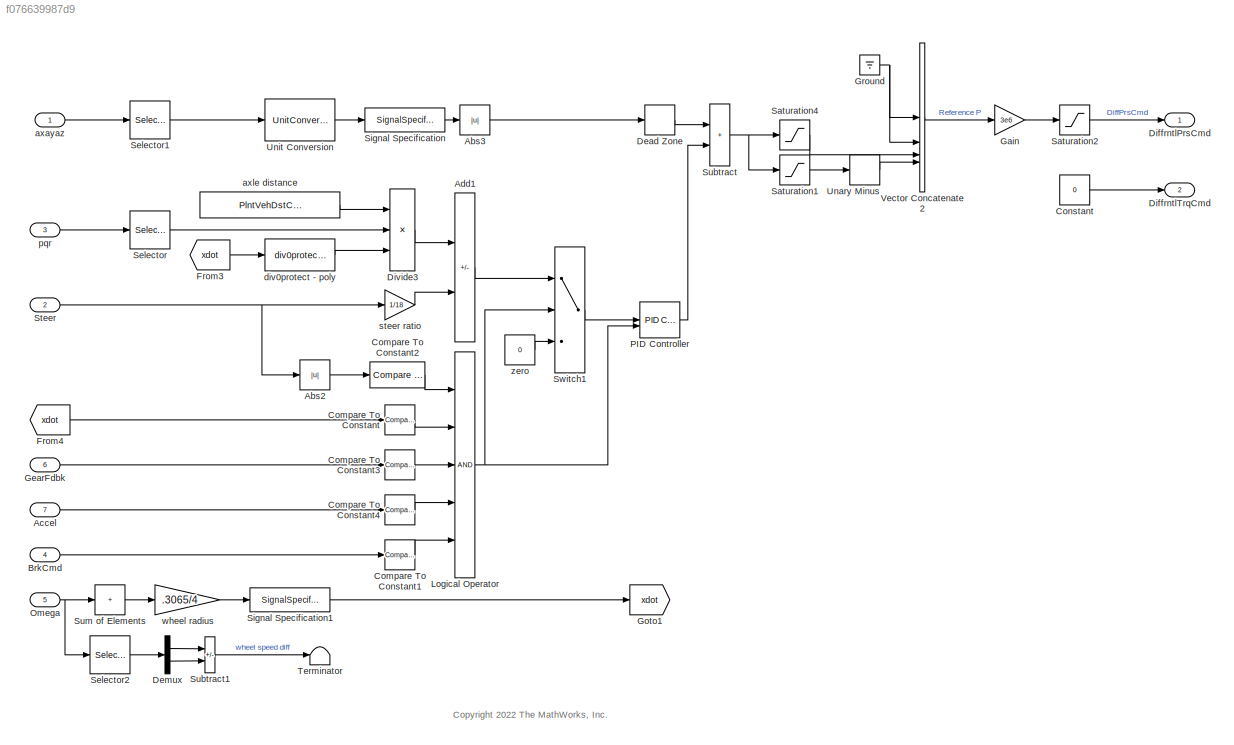
MODEL slx_f076639987d9
KIND model
BLOCK [Abs] Abs2
  SaturateOnIntegerOverflow = off
BLOCK [Abs] Abs3
  SaturateOnIntegerOverflow = off
  ZeroCross = off
BLOCK [Inport] Accel
  OutDataTypeStr = double
  Port = 7
  PortDimensions = 1
BLOCK [Sum] Add1
  IconShape = rectangular
  Inputs = +-
BLOCK [Inport] BrkCmd
  OutDataTypeStr = double
  Port = 4
  PortDimensions = 1
BLOCK [Reference] Compare To Constant  REF=simulink/Logic and Bit
Operations/Compare
To Constant
  SourceBlock = simulink/Logic and Bit\nOperations/Compare\nTo Constant
  SourceType = Compare To Constant
BLOCK [Reference] Compare To Constant1  REF=simulink/Logic and Bit
Operations/Compare
To Constant
  SourceBlock = simulink/Logic and Bit\nOperations/Compare\nTo Constant
  SourceType = Compare To Constant
BLOCK [Reference] Compare To Constant2  REF=simulink/Logic and Bit
Operations/Compare
To Constant
  SourceBlock = simulink/Logic and Bit\nOperations/Compare\nTo Constant
  SourceType = Compare To Constant
BLOCK [Reference] Compare To Constant3  REF=simulink/Logic and Bit
Operations/Compare
To Constant
  SourceBlock = simulink/Logic and Bit\nOperations/Compare\nTo Constant
  SourceType = Compare To Constant
BLOCK [Reference] Compare To Constant4  REF=simulink/Logic and Bit
Operations/Compare
To Constant
  SourceBlock = simulink/Logic and Bit\nOperations/Compare\nTo Constant
  SourceType = Compare To Constant
BLOCK [Constant] Constant
  Value = 0
BLOCK [DeadZone] Dead Zone
  ZeroCross = off
BLOCK [Demux] Demux
  Outputs = 2
BLOCK [Outport] DiffrntlPrsCmd
  OutDataTypeStr = double
  PortDimensions = 4
  VectorParamsAs1DForOutWhenUnconnected = off
BLOCK [Outport] DiffrntlTrqCmd
  OutDataTypeStr = double
  Port = 2
  PortDimensions = 1
  VectorParamsAs1DForOutWhenUnconnected = off
BLOCK [Product] Divide3
  Inputs = **/
BLOCK [From] From3
  GotoTag = xdot
BLOCK [From] From4
  GotoTag = xdot
BLOCK [Gain] Gain
  Gain = 3e6
BLOCK [Inport] GearFdbk
  OutDataTypeStr = double
  Port = 6
  PortDimensions = 1
BLOCK [Goto] Goto1
  GotoTag = xdot
BLOCK [Ground] Ground
BLOCK [Logic] Logical Operator
  AllPortsSameDT = off
  Inputs = 5
  OutDataTypeStr = boolean
BLOCK [Inport] Omega
  OutDataTypeStr = double
  Port = 5
  PortDimensions = 4
  Unit = rad/s
BLOCK [Reference] PID Controller  REF=slpidlib/PID Controller
  SourceBlock = slpidlib/PID Controller
  SourceType = PID 1dof
BLOCK [Saturate] Saturation1
  LowerLimit = -1
  UpperLimit = 0
  ZeroCross = off
BLOCK [Saturate] Saturation2
  LowerLimit = 0
  UpperLimit = 5e6
  ZeroCross = off
BLOCK [Saturate] Saturation4
  LowerLimit = 0
  UpperLimit = 1
  ZeroCross = off
BLOCK [Selector] Selector
  IndexOptions = Index vector (dialog)
  Indices = [3]
  InputPortWidth = 3
  OutputSizes = 1
BLOCK [Selector] Selector1
  IndexOptions = Index vector (dialog)
  Indices = [2]
  InputPortWidth = 3
  OutputSizes = 1
BLOCK [Selector] Selector2
  IndexOptions = Index vector (dialog)
  Indices = [3 4]
  InputPortWidth = 4
  OutputSizes = 1
BLOCK [SignalSpecification] Signal Specification
  Unit = gn
BLOCK [SignalSpecification] Signal Specification1
  Unit = m/s
BLOCK [Inport] Steer
  OutDataTypeStr = double
  Port = 2
  PortDimensions = 1
BLOCK [Sum] Subtract
  IconShape = rectangular
BLOCK [Sum] Subtract1
  IconShape = rectangular
  Inputs = +-
BLOCK [Sum] Sum of Elements
  IconShape = rectangular
  Inputs = +
BLOCK [Switch] Switch1
  Criteria = u2 > Threshold
  InputSameDT = off
  SaturateOnIntegerOverflow = off
  Threshold = .1
BLOCK [Terminator] Terminator
BLOCK [UnaryMinus] Unary Minus
BLOCK [UnitConversion] Unit Conversion
BLOCK [Concatenate] Vector Concatenate2
  NumInputs = 4
BLOCK [Inport] axayaz
  OutDataTypeStr = double
  PortDimensions = 3
  Unit = m/s^2
BLOCK [Constant] axle distance
  NameLocation = top
  Value = PlntVehDstCGFrntAxl+PlntVehDstCGRearAxl
BLOCK [Reference] div0protect - poly  REF=autolibutils/div0protect - poly
  SourceBlock = autolibutils/div0protect - poly
BLOCK [Inport] pqr
  OutDataTypeStr = double
  Port = 3
  PortDimensions = 3
BLOCK [Gain] steer ratio
  Gain = 1/18
BLOCK [Gain] wheel radius
  Gain = .3065/4
BLOCK [Constant] zero
  Value = 0
ANNOTATION (root): <copyright redacted>
LINE Abs2:1 -> Compare To Constant2:1
LINE Abs3:1 -> Dead Zone:1
LINE Accel:1 -> Compare To Constant4:1
LINE Add1:1 -> Switch1:1
LINE BrkCmd:1 -> Compare To Constant1:1
LINE Compare To Constant1:1 -> Logical Operator:5
LINE Compare To Constant2:1 -> Logical Operator:1
LINE Compare To Constant3:1 -> Logical Operator:3
LINE Compare To Constant4:1 -> Logical Operator:4
LINE Compare To Constant:1 -> Logical Operator:2
LINE Constant:1 -> DiffrntlTrqCmd:1
LINE Dead Zone:1 -> Subtract:1
LINE Demux:1 -> Subtract1:1
LINE Demux:2 -> Subtract1:2
LINE Divide3:1 -> Add1:1
LINE From3:1 -> div0protect - poly:1
LINE From4:1 -> Compare To Constant:1
LINE Gain:1 -> Saturation2:1
LINE GearFdbk:1 -> Compare To Constant3:1
NET Ground:1 -> Vector Concatenate2:1, Vector Concatenate2:2
NET Logical Operator:1 -> PID Controller:2, Switch1:2
NET Omega:1 -> Selector2:1, Sum of Elements:1
LINE PID Controller:1 -> Subtract:2
LINE Saturation1:1 -> Unary Minus:1
LINE Saturation2:1 -> DiffrntlPrsCmd:1
LINE Saturation4:1 -> Vector Concatenate2:3
LINE Selector1:1 -> Unit Conversion:1
LINE Selector2:1 -> Demux:1
LINE Selector:1 -> Divide3:2
LINE Signal Specification1:1 -> Goto1:1
LINE Signal Specification:1 -> Abs3:1
NET Steer:1 -> Abs2:1, steer ratio:1
LINE Subtract1:1 -> Terminator:1
NET Subtract:1 -> Saturation1:1, Saturation4:1
LINE Sum of Elements:1 -> wheel radius:1
LINE Switch1:1 -> PID Controller:1
LINE Unary Minus:1 -> Vector Concatenate2:4
LINE Unit Conversion:1 -> Signal Specification:1
LINE Vector Concatenate2:1 -> Gain:1
LINE axayaz:1 -> Selector1:1
LINE axle distance:1 -> Divide3:1
LINE div0protect - poly:1 -> Divide3:3
LINE pqr:1 -> Selector:1
LINE steer ratio:1 -> Add1:2
LINE wheel radius:1 -> Signal Specification1:1
LINE zero:1 -> Switch1:3
note: NET lines group one-source signal fan-out (src -> all destinations, sorted); 1:1 wires keep LINE
